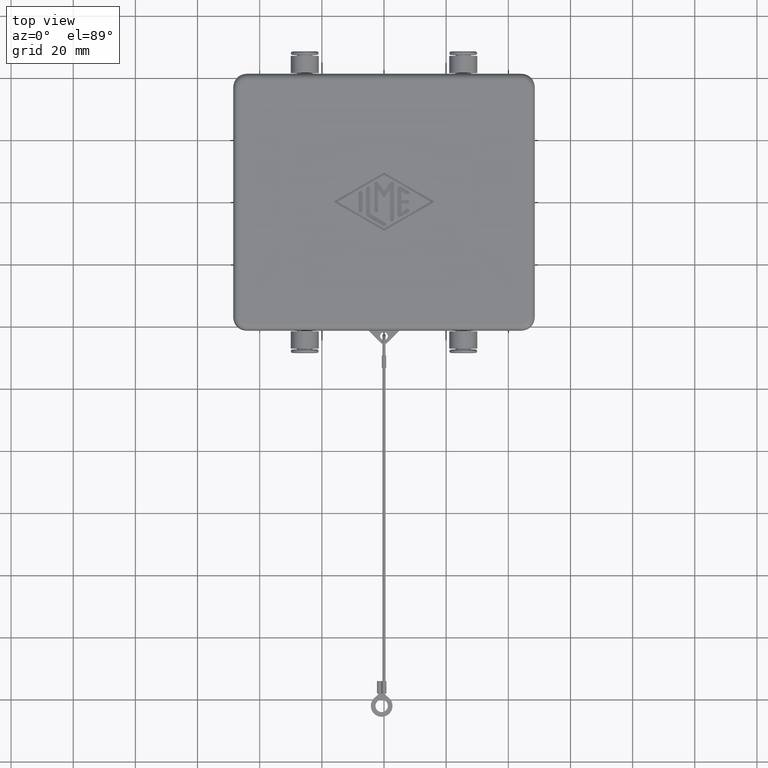
[diagram: clean part render]
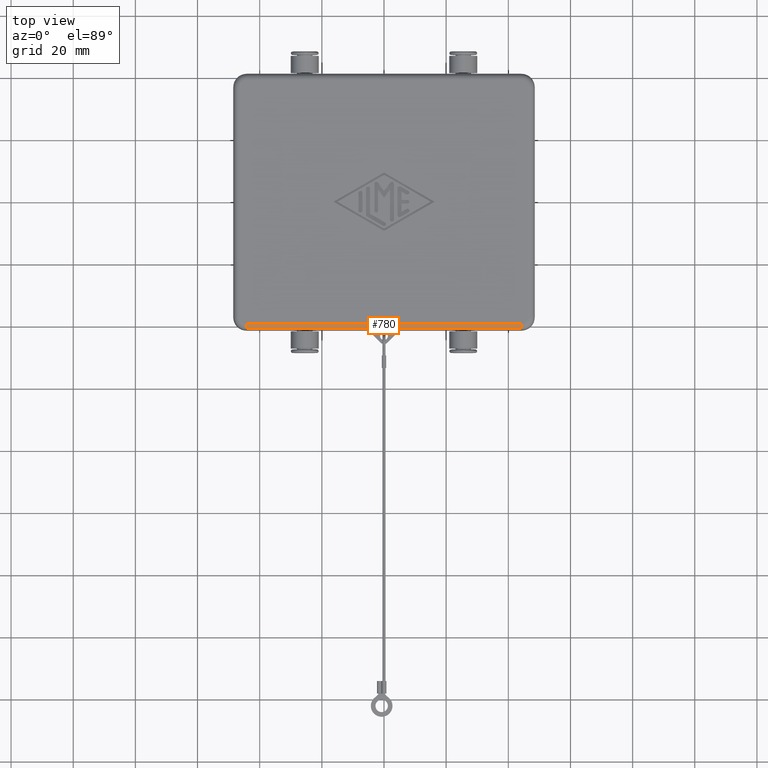
[diagram: same view with one face highlighted and labeled with its STEP entity id]
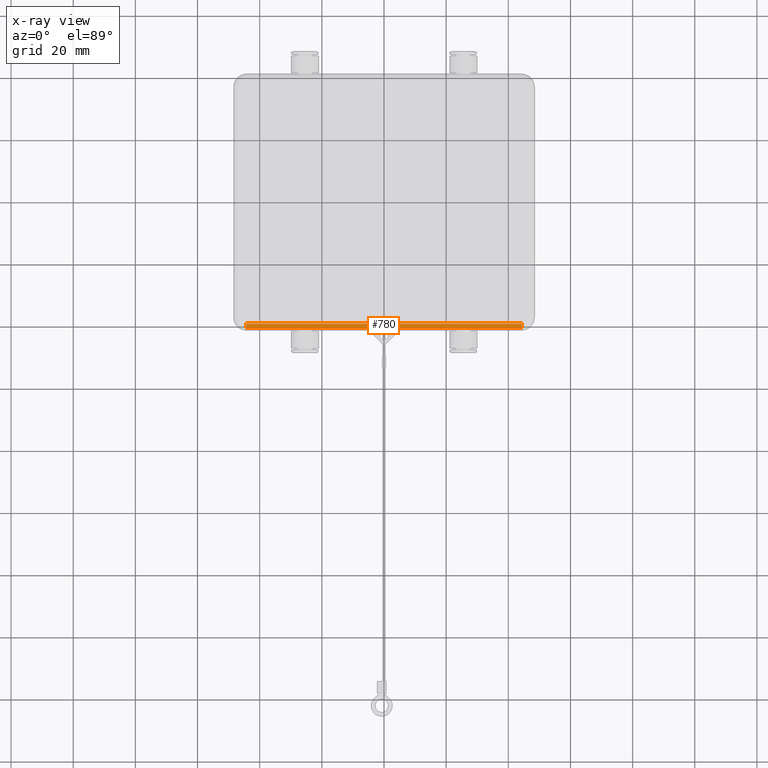
[diagram: x-ray of the same camera — body ghosted, the highlighted face saturated]
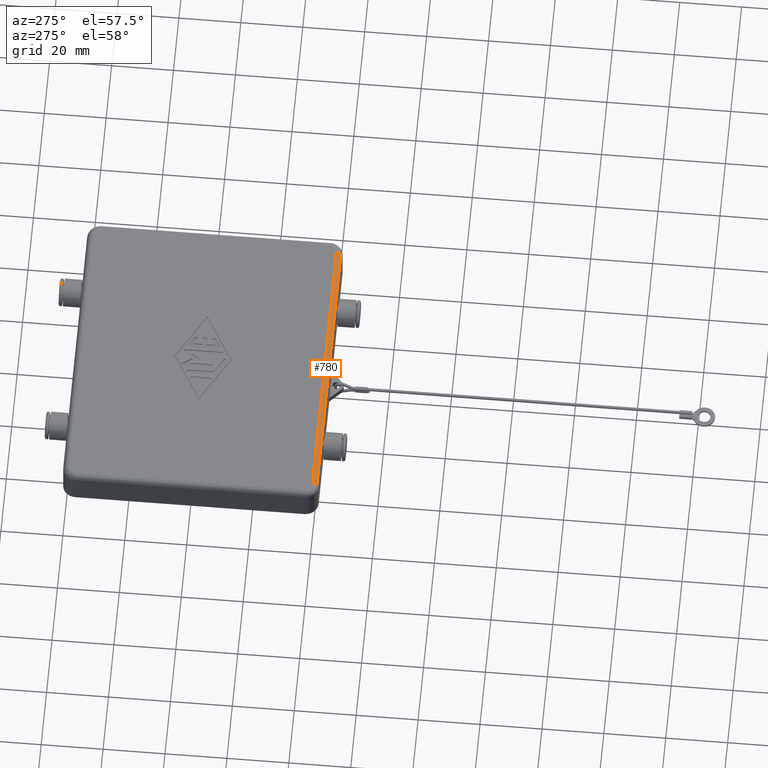
[diagram: same view with one face highlighted and labeled with its STEP entity id]
A machine part, top view. The second image highlights one B-rep face of the part: STEP entity #780.
The next image is the same camera in x-ray: the body ghosted, the highlighted face saturated — about 0% of this face is hidden behind the body in this view.
A second angle (auxiliary view) of the same face is appended — the face is thin or edge-on in the first view.
In plain terms, the highlighted cylindrical surface (edge-blend (fillet) strip) has radius 2 mm, axis along (-1, 0, 0).
Its self-contained STEP definition (entity closure, byte-faithful):
#739=CARTESIAN_POINT('',(24.250000000000007,-39.250000000000000,10.000000000000002));
#740=DIRECTION('',(-1.0,0.0,0.0));
#741=DIRECTION('',(0.0,-0.707106781186550,0.707106781186545));
#742=AXIS2_PLACEMENT_3D('',#739,#740,#741);
#743=CYLINDRICAL_SURFACE('',#742,2.0);
#744=CARTESIAN_POINT('',(44.200000000000017,-40.664213562373099,11.414213562373092));
#745=VERTEX_POINT('',#744);
#746=CARTESIAN_POINT('',(-44.200000000000017,-40.664213562373099,11.414213562373094));
#747=VERTEX_POINT('',#746);
#748=CARTESIAN_POINT('',(44.200000000000017,-40.664213562373099,11.414213562373092));
#749=DIRECTION('',(-1.0,0.0,0.0));
#750=VECTOR('',#749,88.400000000000034);
#751=LINE('',#748,#750);
#752=EDGE_CURVE('',#745,#747,#751,.T.);
#753=ORIENTED_EDGE('',*,*,#752,.F.);
#754=CARTESIAN_POINT('',(44.200000000000017,-39.250000000000000,12.000000000000002));
#755=VERTEX_POINT('',#754);
#756=CARTESIAN_POINT('',(44.200000000000017,-39.250000000000000,10.000000000000002));
#757=DIRECTION('',(1.0,0.0,0.0));
#758=DIRECTION('',(0.0,0.0,1.0));
#759=AXIS2_PLACEMENT_3D('',#756,#757,#758);
#760=CIRCLE('',#759,2.000000000000000);
#761=EDGE_CURVE('',#755,#745,#760,.T.);
#762=ORIENTED_EDGE('',*,*,#761,.F.);
#763=CARTESIAN_POINT('',(-44.200000000000017,-39.250000000000000,12.000000000000002));
#764=VERTEX_POINT('',#763);
#765=CARTESIAN_POINT('',(44.200000000000017,-39.250000000000000,12.000000000000002));
#766=DIRECTION('',(-1.0,0.0,0.0));
#767=VECTOR('',#766,88.400000000000034);
#768=LINE('',#765,#767);
#769=EDGE_CURVE('',#755,#764,#768,.T.);
#770=ORIENTED_EDGE('',*,*,#769,.T.);
#771=CARTESIAN_POINT('',(-44.200000000000017,-39.250000000000000,10.000000000000002));
#772=DIRECTION('',(-1.0,0.0,0.0));
#773=DIRECTION('',(0.0,-1.0,0.0));
#774=AXIS2_PLACEMENT_3D('',#771,#772,#773);
#775=CIRCLE('',#774,2.000000000000002);
#776=EDGE_CURVE('',#747,#764,#775,.T.);
#777=ORIENTED_EDGE('',*,*,#776,.F.);
#778=EDGE_LOOP('',(#753,#762,#770,#777));
#779=FACE_OUTER_BOUND('',#778,.T.);
#780=ADVANCED_FACE('',(#779),#743,.T.);